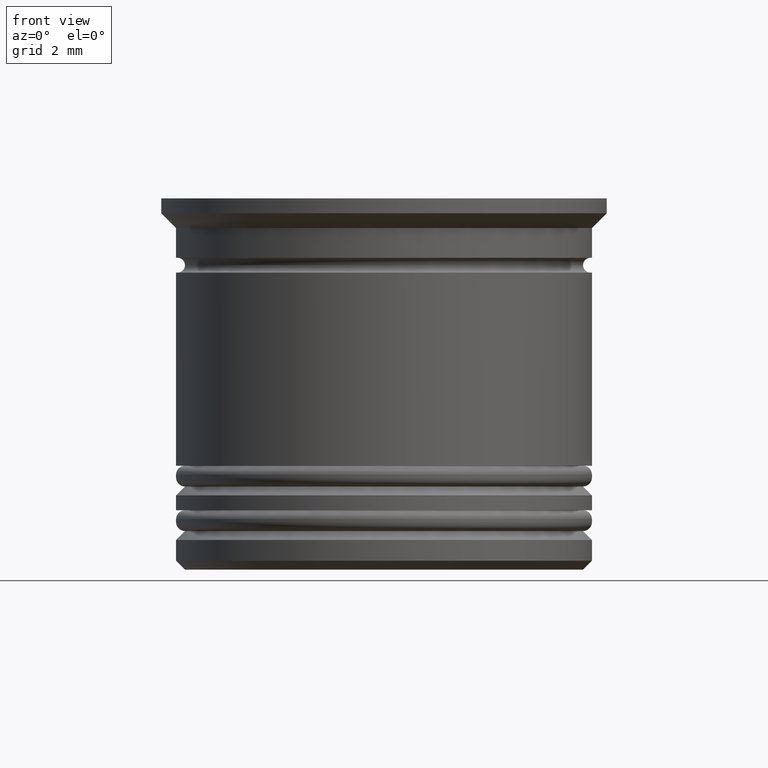
[diagram: clean part render]
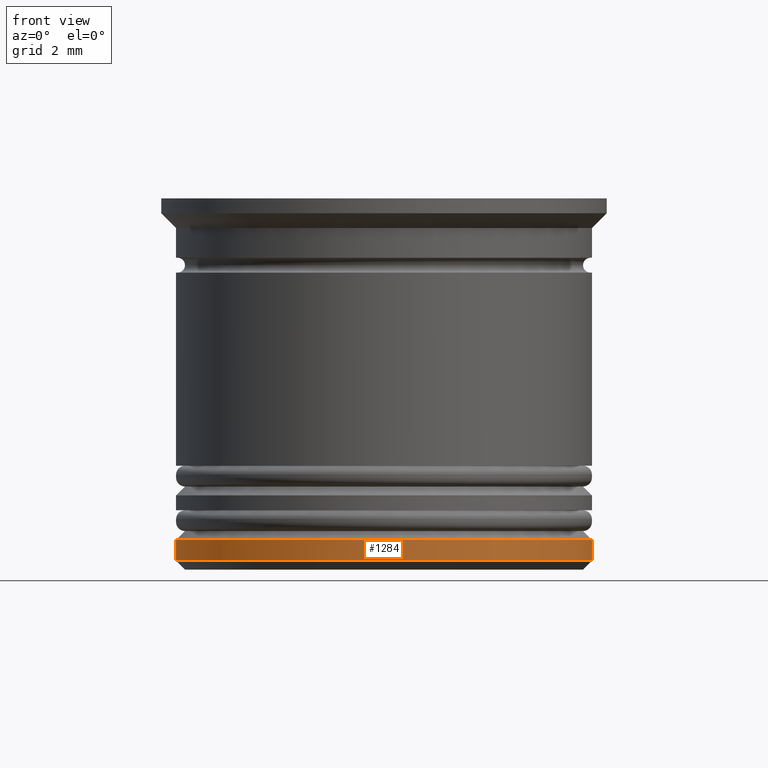
[diagram: same view with one face highlighted and labeled with its STEP entity id]
A machine part, front view. The second image highlights one B-rep face of the part: STEP entity #1284.
In plain terms, the highlighted cylindrical surface (partial cylindrical patch) has radius 7 mm, axis along (-0, -0, 1).
Its self-contained STEP definition (entity closure, byte-faithful):
#90 = EDGE_CURVE ( 'NONE', #555, #346, #218, .T. ) ;
#152 = CARTESIAN_POINT ( 'NONE',  ( 7.000000000000000888, 0.000000000000000000, -12.19999999999999574 ) ) ;
#171 = ORIENTED_EDGE ( 'NONE', *, *, #946, .F. ) ;
#194 = EDGE_CURVE ( 'NONE', #1857, #369, #637, .T. ) ;
#218 = CIRCLE ( 'NONE', #842, 7.000000000000000888 ) ;
#234 = CARTESIAN_POINT ( 'NONE',  ( 0.000000000000000000, 0.000000000000000000, -12.19999999999999574 ) ) ;
#264 = LINE ( 'NONE', #1345, #1421 ) ;
#327 = CARTESIAN_POINT ( 'NONE',  ( 7.000000000000000888, 0.000000000000000000, 0.000000000000000000 ) ) ;
#346 = VERTEX_POINT ( 'NONE', #1695 ) ;
#369 = VERTEX_POINT ( 'NONE', #152 ) ;
#530 = FACE_OUTER_BOUND ( 'NONE', #1318, .T. ) ;
#545 = AXIS2_PLACEMENT_3D ( 'NONE', #234, #861, #890 ) ;
#546 = CARTESIAN_POINT ( 'NONE',  ( -7.000000000000000888, 8.572527594031474176E-16, -12.19999999999999574 ) ) ;
#555 = VERTEX_POINT ( 'NONE', #899 ) ;
#637 = CIRCLE ( 'NONE', #545, 7.000000000000000888 ) ;
#648 = DIRECTION ( 'NONE',  ( -1.000000000000000000, 0.000000000000000000, 0.000000000000000000 ) ) ;
#649 = CARTESIAN_POINT ( 'NONE',  ( 0.000000000000000000, 0.000000000000000000, 0.000000000000000000 ) ) ;
#698 = EDGE_CURVE ( 'NONE', #369, #555, #1753, .T. ) ;
#839 = CARTESIAN_POINT ( 'NONE',  ( 0.000000000000000000, 0.000000000000000000, -11.50000000000000533 ) ) ;
#842 = AXIS2_PLACEMENT_3D ( 'NONE', #839, #1265, #648 ) ;
#861 = DIRECTION ( 'NONE',  ( -0.000000000000000000, -0.000000000000000000, 1.000000000000000000 ) ) ;
#890 = DIRECTION ( 'NONE',  ( -1.000000000000000000, 0.000000000000000000, 0.000000000000000000 ) ) ;
#899 = CARTESIAN_POINT ( 'NONE',  ( 7.000000000000000888, 0.000000000000000000, -11.50000000000000533 ) ) ;
#946 = EDGE_CURVE ( 'NONE', #1857, #346, #264, .T. ) ;
#963 = DIRECTION ( 'NONE',  ( -0.000000000000000000, -0.000000000000000000, 1.000000000000000000 ) ) ;
#966 = VECTOR ( 'NONE', #1574, 1000.000000000000000 ) ;
#991 = CYLINDRICAL_SURFACE ( 'NONE', #1874, 7.000000000000000888 ) ;
#1037 = ORIENTED_EDGE ( 'NONE', *, *, #698, .T. ) ;
#1218 = DIRECTION ( 'NONE',  ( -0.000000000000000000, -0.000000000000000000, 1.000000000000000000 ) ) ;
#1265 = DIRECTION ( 'NONE',  ( 0.000000000000000000, 0.000000000000000000, -1.000000000000000000 ) ) ;
#1284 = ADVANCED_FACE ( 'NONE', ( #530 ), #991, .T. ) ;
#1318 = EDGE_LOOP ( 'NONE', ( #171, #1422, #1037, #1866 ) ) ;
#1345 = CARTESIAN_POINT ( 'NONE',  ( -7.000000000000000888, 8.572527594031474176E-16, 0.000000000000000000 ) ) ;
#1421 = VECTOR ( 'NONE', #1218, 1000.000000000000000 ) ;
#1422 = ORIENTED_EDGE ( 'NONE', *, *, #194, .T. ) ;
#1574 = DIRECTION ( 'NONE',  ( -0.000000000000000000, -0.000000000000000000, 1.000000000000000000 ) ) ;
#1587 = DIRECTION ( 'NONE',  ( 1.000000000000000000, 0.000000000000000000, 0.000000000000000000 ) ) ;
#1695 = CARTESIAN_POINT ( 'NONE',  ( -7.000000000000000888, 8.572527594031474176E-16, -11.50000000000000533 ) ) ;
#1753 = LINE ( 'NONE', #327, #966 ) ;
#1857 = VERTEX_POINT ( 'NONE', #546 ) ;
#1866 = ORIENTED_EDGE ( 'NONE', *, *, #90, .T. ) ;
#1874 = AXIS2_PLACEMENT_3D ( 'NONE', #649, #963, #1587 ) ;